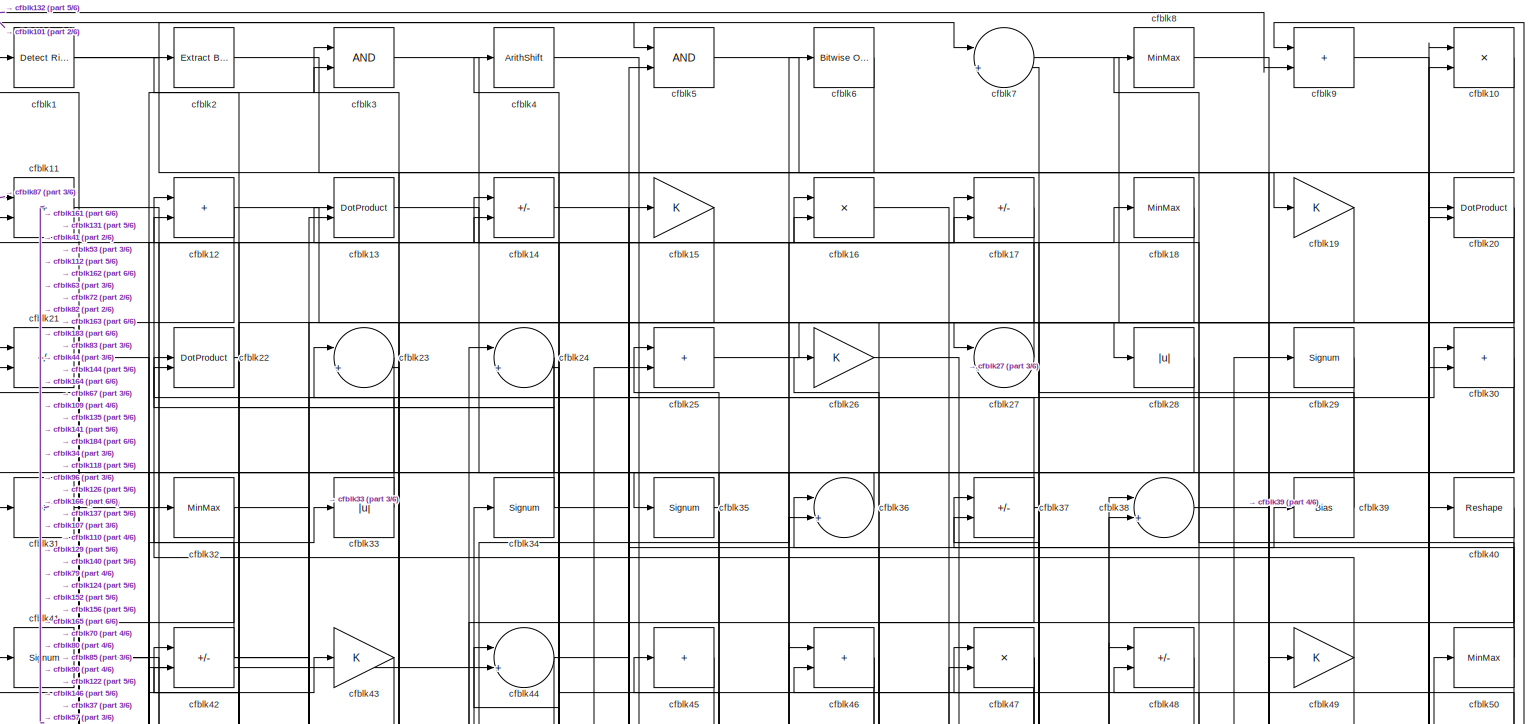
[diagram: root canvas - part 1/6, full width, top band]
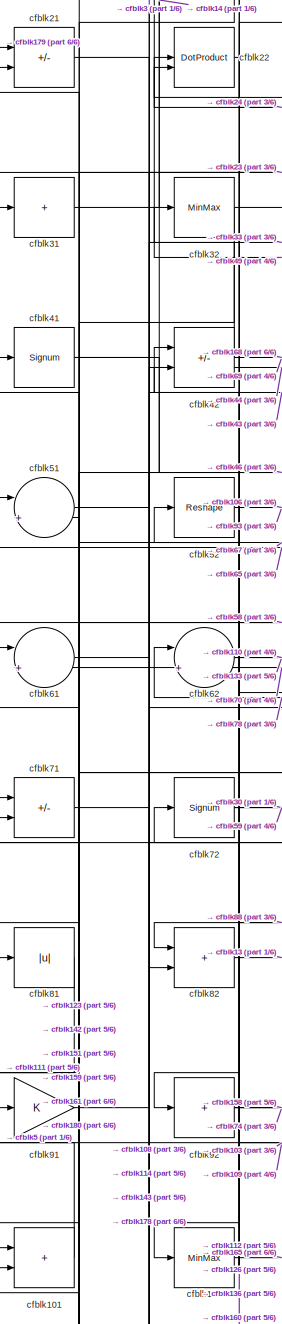
[diagram: root canvas - part 2/6, middle left region]
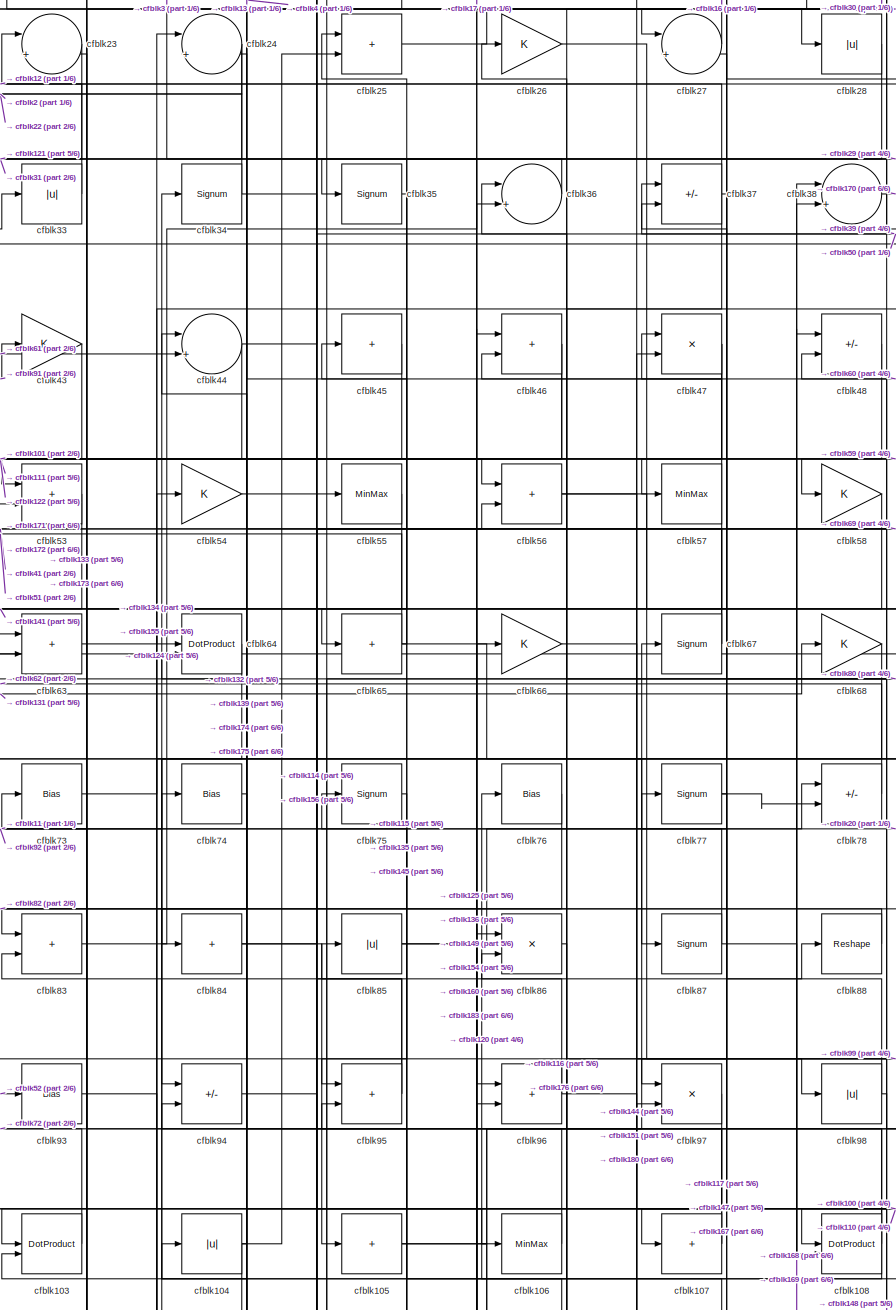
[diagram: root canvas - part 3/6, central region]
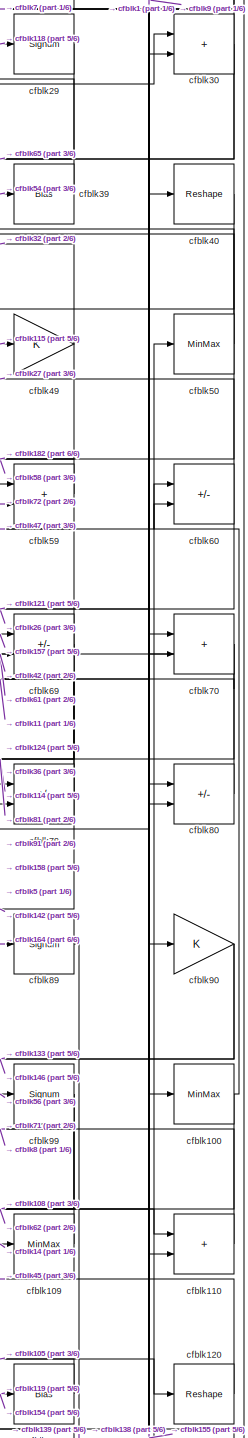
[diagram: root canvas - part 4/6, middle right region]
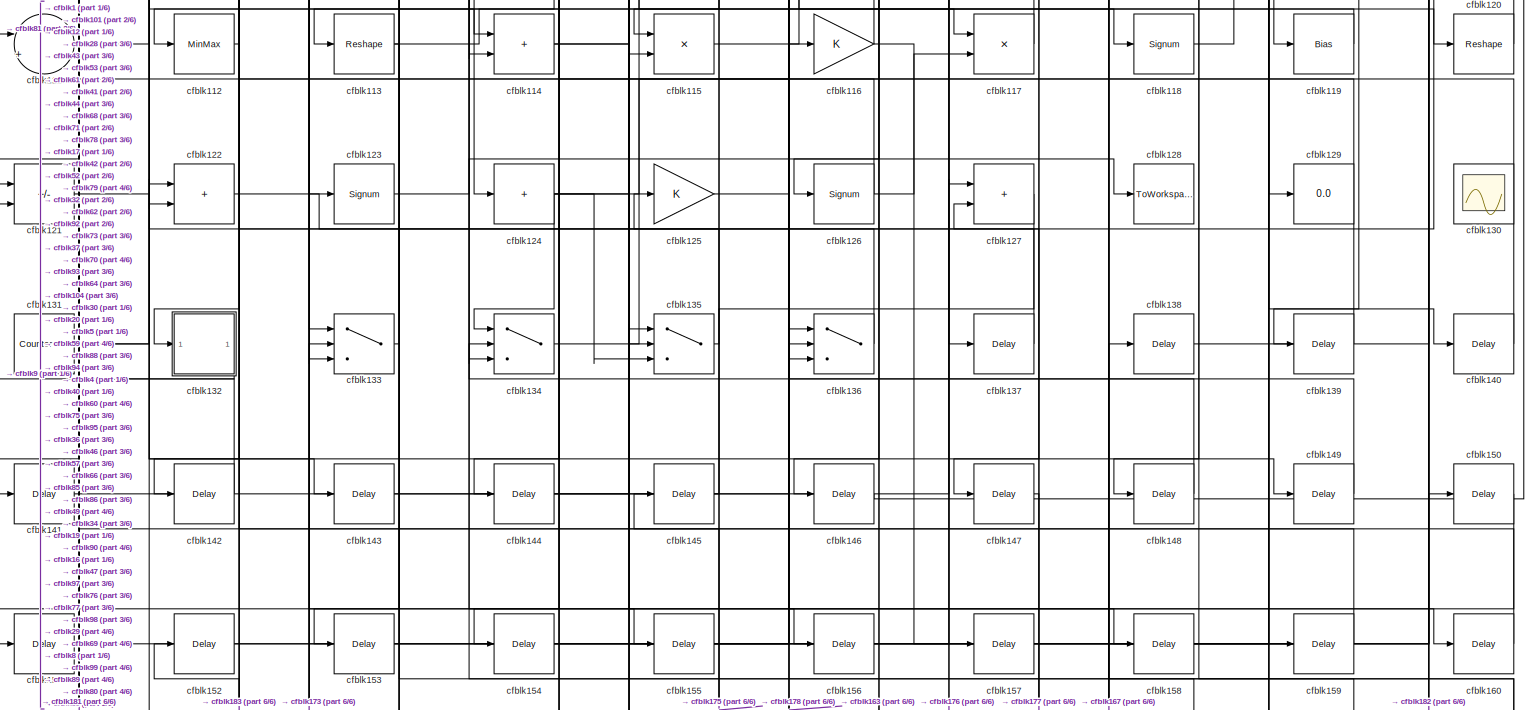
[diagram: root canvas - part 5/6, full width, bottom band]
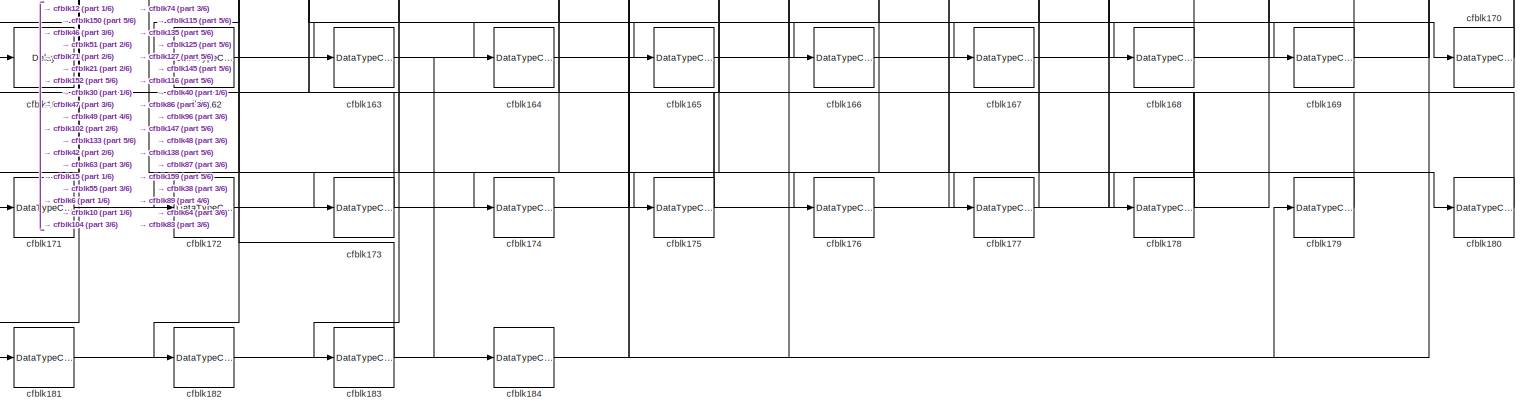
[diagram: root canvas - part 6/6, full width, bottom band]
MODEL slx_c4574be2befc
KIND model
CONFIG AbsTol = auto
CONFIG EnableMultiTasking = off
CONFIG FixedStep = auto
CONFIG MaxStep = auto
CONFIG MinStep = auto
CONFIG RelTol = 1e-3
CONFIG SampleTimeConstraint = Unconstrained
CONFIG SolverName = VariableStepAuto
CONFIG StartTime = 0.0
CONFIG StopTime = 10.0
BLOCK [Reference] cfblk1  REF=hdlsllib/Logic and Bit
Operations/Detect Rise
Nonnegative
  SourceBlock = hdlsllib/Logic and Bit\nOperations/Detect Rise\nNonnegative
  SourceType = Detect Rise Nonnegative
BLOCK [Product] cfblk10
  Inputs = */
  RndMeth = Zero
  SaturateOnIntegerOverflow = on
BLOCK [MinMax] cfblk100
BLOCK [Sum] cfblk101
  IconShape = rectangular
BLOCK [MinMax] cfblk102
BLOCK [DotProduct] cfblk103
  OutDataTypeStr = Inherit: Inherit via internal rule
BLOCK [Abs] cfblk104
  SaturateOnIntegerOverflow = off
BLOCK [Sum] cfblk105
  IconShape = rectangular
  Inputs = +
BLOCK [MinMax] cfblk106
BLOCK [Sum] cfblk107
  IconShape = rectangular
  Inputs = +
BLOCK [DotProduct] cfblk108
  OutDataTypeStr = Inherit: Inherit via internal rule
BLOCK [MinMax] cfblk109
BLOCK [Sum] cfblk11
  IconShape = rectangular
BLOCK [Sum] cfblk110
  IconShape = rectangular
BLOCK [Sum] cfblk111
  Inputs = |++
BLOCK [MinMax] cfblk112
BLOCK [Reshape] cfblk113
BLOCK [Sum] cfblk114
  IconShape = rectangular
BLOCK [Product] cfblk115
  Inputs = */
  RndMeth = Zero
  SaturateOnIntegerOverflow = on
BLOCK [Gain] cfblk116
BLOCK [Product] cfblk117
  Inputs = */
  RndMeth = Zero
  SaturateOnIntegerOverflow = on
BLOCK [Signum] cfblk118
BLOCK [Bias] cfblk119
  Bias = 0.0
  SaturateOnIntegerOverflow = off
BLOCK [Sum] cfblk12
  IconShape = rectangular
BLOCK [Reshape] cfblk120
BLOCK [Sum] cfblk121
  IconShape = rectangular
  Inputs = +-
BLOCK [Sum] cfblk122
  IconShape = rectangular
BLOCK [Signum] cfblk123
BLOCK [Sum] cfblk124
  IconShape = rectangular
  Inputs = +
BLOCK [Gain] cfblk125
BLOCK [Signum] cfblk126
BLOCK [Sum] cfblk127
  IconShape = rectangular
BLOCK [ToWorkspace] cfblk128
  MaxDataPoints = inf
  SampleTime = -1
  SaveFormat = Timeseries
  VariableName = simout
BLOCK [Display] cfblk129
  Decimation = 1
BLOCK [DotProduct] cfblk13
  OutDataTypeStr = Inherit: Inherit via internal rule
BLOCK [Scope] cfblk130
  Floating = on
  NumInputPorts = 1
  ScopeSpecificationString = Simulink.scopes.TimeScopeBlockCfg('CurrentConfiguration', extmgr.ConfigurationSet(extmgr.Configuration('Core','General UI',true,'FigureColor',[0.156862745098039 0.156862745098039 0.156862745098039]),extmgr.Configuration('Core','Source UI',true),extmgr.Configuration('Sources','WiredSimulink',true,'DataLoggingVariableName','ScopeData1','DataLoggingSaveFormat','StructureWithTime','DataLoggingLimitDat...<+2713ch>
BLOCK [Reference] cfblk131  REF=hdlsllib/Sources/Counter
Free-Running
  SourceBlock = hdlsllib/Sources/Counter\nFree-Running
  SourceType = Counter Free-Running
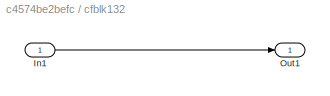
BLOCK [SubSystem] cfblk132
  LibrarySourceBlock = hdlsllib/Ports &\nSubsystems/Subsystem
BLOCK [Inport] cfblk132/In1
BLOCK [Outport] cfblk132/Out1
BLOCK [Switch] cfblk133
  InputSameDT = off
  SaturateOnIntegerOverflow = off
BLOCK [Switch] cfblk134
  InputSameDT = off
  SaturateOnIntegerOverflow = off
BLOCK [Switch] cfblk135
  InputSameDT = off
  SaturateOnIntegerOverflow = off
BLOCK [Switch] cfblk136
  InputSameDT = off
  SaturateOnIntegerOverflow = off
BLOCK [Delay] cfblk137
  InputPortMap = u0
  SampleTime = 1
BLOCK [Delay] cfblk138
  InputPortMap = u0
  SampleTime = 1
BLOCK [Delay] cfblk139
  InputPortMap = u0
  SampleTime = 1
BLOCK [Sum] cfblk14
  IconShape = rectangular
  Inputs = +-
BLOCK [Delay] cfblk140
  InputPortMap = u0
  SampleTime = 1
BLOCK [Delay] cfblk141
  InputPortMap = u0
  SampleTime = 1
BLOCK [Delay] cfblk142
  InputPortMap = u0
  SampleTime = 1
BLOCK [Delay] cfblk143
  InputPortMap = u0
  SampleTime = 1
BLOCK [Delay] cfblk144
  InputPortMap = u0
  SampleTime = 1
BLOCK [Delay] cfblk145
  InputPortMap = u0
  SampleTime = 1
BLOCK [Delay] cfblk146
  InputPortMap = u0
  SampleTime = 1
BLOCK [Delay] cfblk147
  InputPortMap = u0
  SampleTime = 1
BLOCK [Delay] cfblk148
  InputPortMap = u0
  SampleTime = 1
BLOCK [Delay] cfblk149
  InputPortMap = u0
  SampleTime = 1
BLOCK [Gain] cfblk15
BLOCK [Delay] cfblk150
  InputPortMap = u0
  SampleTime = 1
BLOCK [Delay] cfblk151
  InputPortMap = u0
  SampleTime = 1
BLOCK [Delay] cfblk152
  InputPortMap = u0
  SampleTime = 1
BLOCK [Delay] cfblk153
  InputPortMap = u0
  SampleTime = 1
BLOCK [Delay] cfblk154
  InputPortMap = u0
  SampleTime = 1
BLOCK [Delay] cfblk155
  InputPortMap = u0
  SampleTime = 1
BLOCK [Delay] cfblk156
  InputPortMap = u0
  SampleTime = 1
BLOCK [Delay] cfblk157
  InputPortMap = u0
  SampleTime = 1
BLOCK [Delay] cfblk158
  InputPortMap = u0
  SampleTime = 1
BLOCK [Delay] cfblk159
  InputPortMap = u0
  SampleTime = 1
BLOCK [Product] cfblk16
  Inputs = */
  RndMeth = Zero
  SaturateOnIntegerOverflow = on
BLOCK [Delay] cfblk160
  InputPortMap = u0
  SampleTime = 1
BLOCK [Delay] cfblk161
  InputPortMap = u0
  SampleTime = 1
BLOCK [DataTypeConversion] cfblk162
  OutDataTypeStr = boolean
  RndMeth = Floor
  SaturateOnIntegerOverflow = off
BLOCK [DataTypeConversion] cfblk163
  RndMeth = Floor
  SaturateOnIntegerOverflow = off
BLOCK [DataTypeConversion] cfblk164
  OutDataTypeStr = uint8
  RndMeth = Floor
  SaturateOnIntegerOverflow = off
BLOCK [DataTypeConversion] cfblk165
  OutDataTypeStr = uint8
  RndMeth = Floor
  SaturateOnIntegerOverflow = off
BLOCK [DataTypeConversion] cfblk166
  OutDataTypeStr = uint8
  RndMeth = Floor
  SaturateOnIntegerOverflow = off
BLOCK [DataTypeConversion] cfblk167
  OutDataTypeStr = uint8
  RndMeth = Floor
  SaturateOnIntegerOverflow = off
BLOCK [DataTypeConversion] cfblk168
  OutDataTypeStr = uint8
  RndMeth = Floor
  SaturateOnIntegerOverflow = off
BLOCK [DataTypeConversion] cfblk169
  OutDataTypeStr = uint8
  RndMeth = Floor
  SaturateOnIntegerOverflow = off
BLOCK [Sum] cfblk17
  IconShape = rectangular
  Inputs = +-
BLOCK [DataTypeConversion] cfblk170
  RndMeth = Floor
  SaturateOnIntegerOverflow = off
BLOCK [DataTypeConversion] cfblk171
  OutDataTypeStr = uint8
  RndMeth = Floor
  SaturateOnIntegerOverflow = off
BLOCK [DataTypeConversion] cfblk172
  OutDataTypeStr = uint8
  RndMeth = Floor
  SaturateOnIntegerOverflow = off
BLOCK [DataTypeConversion] cfblk173
  RndMeth = Floor
  SaturateOnIntegerOverflow = off
BLOCK [DataTypeConversion] cfblk174
  OutDataTypeStr = uint8
  RndMeth = Floor
  SaturateOnIntegerOverflow = off
BLOCK [DataTypeConversion] cfblk175
  RndMeth = Floor
  SaturateOnIntegerOverflow = off
BLOCK [DataTypeConversion] cfblk176
  OutDataTypeStr = uint8
  RndMeth = Floor
  SaturateOnIntegerOverflow = off
BLOCK [DataTypeConversion] cfblk177
  OutDataTypeStr = uint8
  RndMeth = Floor
  SaturateOnIntegerOverflow = off
BLOCK [DataTypeConversion] cfblk178
  RndMeth = Floor
  SaturateOnIntegerOverflow = off
BLOCK [DataTypeConversion] cfblk179
  OutDataTypeStr = uint8
  RndMeth = Floor
  SaturateOnIntegerOverflow = off
BLOCK [MinMax] cfblk18
BLOCK [DataTypeConversion] cfblk180
  OutDataTypeStr = uint8
  RndMeth = Floor
  SaturateOnIntegerOverflow = off
BLOCK [DataTypeConversion] cfblk181
  OutDataTypeStr = uint8
  RndMeth = Floor
  SaturateOnIntegerOverflow = off
BLOCK [DataTypeConversion] cfblk182
  OutDataTypeStr = uint8
  RndMeth = Floor
  SaturateOnIntegerOverflow = off
BLOCK [DataTypeConversion] cfblk183
  RndMeth = Floor
  SaturateOnIntegerOverflow = off
BLOCK [DataTypeConversion] cfblk184
  OutDataTypeStr = uint8
  RndMeth = Floor
  SaturateOnIntegerOverflow = off
BLOCK [Gain] cfblk19
BLOCK [Reference] cfblk2  REF=simulink/Logic and Bit
Operations/Extract Bits
  LibrarySourceBlock = hdlsllib/Logic and Bit\nOperations/Extract Bits
  SourceBlock = simulink/Logic and Bit\nOperations/Extract Bits
  SourceType = Extract Bits
BLOCK [DotProduct] cfblk20
  OutDataTypeStr = Inherit: Inherit via internal rule
BLOCK [Sum] cfblk21
  IconShape = rectangular
  Inputs = +-
BLOCK [DotProduct] cfblk22
  OutDataTypeStr = Inherit: Inherit via internal rule
BLOCK [Sum] cfblk23
  Inputs = |++
BLOCK [Sum] cfblk24
  Inputs = |++
BLOCK [Sum] cfblk25
  IconShape = rectangular
BLOCK [Gain] cfblk26
BLOCK [Sum] cfblk27
  Inputs = |++
BLOCK [Abs] cfblk28
  SaturateOnIntegerOverflow = off
BLOCK [Signum] cfblk29
BLOCK [Logic] cfblk3
  AllPortsSameDT = off
  OutDataTypeStr = boolean
BLOCK [Sum] cfblk30
  IconShape = rectangular
BLOCK [Sum] cfblk31
  IconShape = rectangular
  Inputs = +
BLOCK [MinMax] cfblk32
BLOCK [Abs] cfblk33
  SaturateOnIntegerOverflow = off
BLOCK [Signum] cfblk34
BLOCK [Signum] cfblk35
BLOCK [Sum] cfblk36
  Inputs = |++
BLOCK [Sum] cfblk37
  IconShape = rectangular
  Inputs = +-
BLOCK [Sum] cfblk38
  Inputs = |++
BLOCK [Bias] cfblk39
  Bias = 0.0
  SaturateOnIntegerOverflow = off
BLOCK [ArithShift] cfblk4
  BitShiftNumber = 8
  InputPortMap = u0
BLOCK [Reshape] cfblk40
BLOCK [Signum] cfblk41
BLOCK [Sum] cfblk42
  IconShape = rectangular
  Inputs = +-
BLOCK [Gain] cfblk43
BLOCK [Sum] cfblk44
  Inputs = |++
BLOCK [Sum] cfblk45
  IconShape = rectangular
  Inputs = +
BLOCK [Sum] cfblk46
  IconShape = rectangular
BLOCK [Product] cfblk47
  Inputs = */
  RndMeth = Zero
  SaturateOnIntegerOverflow = on
BLOCK [Sum] cfblk48
  IconShape = rectangular
  Inputs = +-
BLOCK [Gain] cfblk49
BLOCK [Logic] cfblk5
  AllPortsSameDT = off
  OutDataTypeStr = boolean
BLOCK [MinMax] cfblk50
BLOCK [Sum] cfblk51
  Inputs = |++
BLOCK [Reshape] cfblk52
BLOCK [Sum] cfblk53
  IconShape = rectangular
BLOCK [Gain] cfblk54
BLOCK [MinMax] cfblk55
BLOCK [Sum] cfblk56
  IconShape = rectangular
BLOCK [MinMax] cfblk57
BLOCK [Gain] cfblk58
BLOCK [Sum] cfblk59
  IconShape = rectangular
BLOCK [Reference] cfblk6  REF=simulink/Logic and Bit
Operations/Bitwise
Operator
  LibrarySourceBlock = hdlsllib/Logic and Bit\nOperations/Bitwise\nOperator
  SourceBlock = simulink/Logic and Bit\nOperations/Bitwise\nOperator
  SourceType = Bitwise Operator
BLOCK [Sum] cfblk60
  IconShape = rectangular
  Inputs = +-
BLOCK [Sum] cfblk61
  Inputs = |++
BLOCK [Sum] cfblk62
  Inputs = |++
BLOCK [Sum] cfblk63
  IconShape = rectangular
BLOCK [DotProduct] cfblk64
  OutDataTypeStr = Inherit: Inherit via internal rule
BLOCK [Sum] cfblk65
  IconShape = rectangular
  Inputs = +
BLOCK [Gain] cfblk66
BLOCK [Signum] cfblk67
BLOCK [Gain] cfblk68
BLOCK [Sum] cfblk69
  IconShape = rectangular
  Inputs = +-
BLOCK [Sum] cfblk7
  Inputs = |++
BLOCK [Sum] cfblk70
  IconShape = rectangular
BLOCK [Sum] cfblk71
  IconShape = rectangular
  Inputs = +-
BLOCK [Signum] cfblk72
BLOCK [Bias] cfblk73
  Bias = 0.0
  SaturateOnIntegerOverflow = off
BLOCK [Bias] cfblk74
  Bias = 0.0
  SaturateOnIntegerOverflow = off
BLOCK [Signum] cfblk75
BLOCK [Bias] cfblk76
  Bias = 0.0
  SaturateOnIntegerOverflow = off
BLOCK [Signum] cfblk77
BLOCK [Sum] cfblk78
  IconShape = rectangular
  Inputs = +-
BLOCK [Sum] cfblk79
  IconShape = rectangular
  Inputs = +-
BLOCK [MinMax] cfblk8
BLOCK [Sum] cfblk80
  IconShape = rectangular
  Inputs = +-
BLOCK [Abs] cfblk81
  SaturateOnIntegerOverflow = off
BLOCK [Sum] cfblk82
  IconShape = rectangular
BLOCK [Sum] cfblk83
  IconShape = rectangular
BLOCK [Sum] cfblk84
  IconShape = rectangular
  Inputs = +
BLOCK [Abs] cfblk85
  SaturateOnIntegerOverflow = off
BLOCK [Product] cfblk86
  Inputs = */
  RndMeth = Zero
  SaturateOnIntegerOverflow = on
BLOCK [Signum] cfblk87
BLOCK [Reshape] cfblk88
BLOCK [Signum] cfblk89
BLOCK [Sum] cfblk9
  IconShape = rectangular
BLOCK [Gain] cfblk90
BLOCK [Gain] cfblk91
BLOCK [Sum] cfblk92
  IconShape = rectangular
  Inputs = +
BLOCK [Bias] cfblk93
  Bias = 0.0
  SaturateOnIntegerOverflow = off
BLOCK [Sum] cfblk94
  IconShape = rectangular
  Inputs = +-
BLOCK [Sum] cfblk95
  IconShape = rectangular
BLOCK [Sum] cfblk96
  IconShape = rectangular
BLOCK [Product] cfblk97
  Inputs = */
  RndMeth = Zero
  SaturateOnIntegerOverflow = on
BLOCK [Abs] cfblk98
  SaturateOnIntegerOverflow = off
BLOCK [Signum] cfblk99
NET cfblk100:1 -> cfblk108:1, cfblk60:1
LINE cfblk101:1 -> cfblk5:1
LINE cfblk102:1 -> cfblk165:1
LINE cfblk103:1 -> cfblk72:1
NET cfblk104:1 -> cfblk132:1, cfblk25:2, cfblk64:2
NET cfblk105:1 -> cfblk120:1, cfblk67:1
LINE cfblk106:1 -> cfblk94:2
NET cfblk107:1 -> cfblk23:1, cfblk26:1
NET cfblk108:1 -> cfblk103:2, cfblk24:2, cfblk37:1
LINE cfblk109:1 -> cfblk71:1
LINE cfblk10:1 -> cfblk164:1
LINE cfblk110:1 -> cfblk8:1
LINE cfblk111:1 -> cfblk78:1
LINE cfblk112:1 -> cfblk62:2
NET cfblk113:1 -> cfblk117:1, cfblk153:1
NET cfblk114:1 -> cfblk59:1, cfblk88:1
LINE cfblk115:1 -> cfblk49:1
NET cfblk116:1 -> cfblk157:1, cfblk34:1
LINE cfblk117:1 -> cfblk76:1
LINE cfblk118:1 -> cfblk29:1
LINE cfblk119:1 -> cfblk113:1
LINE cfblk11:1 -> cfblk53:2
LINE cfblk120:1 -> cfblk45:1
LINE cfblk121:1 -> cfblk149:1
LINE cfblk122:1 -> cfblk50:1
LINE cfblk123:1 -> cfblk128:1
NET cfblk124:1 -> cfblk134:1, cfblk135:3, cfblk40:1, cfblk60:2
LINE cfblk125:1 -> cfblk86:1
NET cfblk126:1 -> cfblk117:2, cfblk52:1
LINE cfblk127:1 -> cfblk175:1
NET cfblk12:1 -> cfblk129:1, cfblk161:1
NET cfblk131:1 -> cfblk17:2, cfblk68:1
LINE cfblk132/In1:1 -> cfblk132/Out1:1
LINE cfblk132:1 -> cfblk9:2
LINE cfblk133:1 -> cfblk73:1
LINE cfblk134:1 -> cfblk66:1
LINE cfblk135:1 -> cfblk75:1
LINE cfblk136:1 -> cfblk42:1
LINE cfblk137:1 -> cfblk122:1
LINE cfblk138:1 -> cfblk70:1
LINE cfblk139:1 -> cfblk44:1
LINE cfblk13:1 -> cfblk16:2
LINE cfblk140:1 -> cfblk1:1
LINE cfblk141:1 -> cfblk5:2
LINE cfblk142:1 -> cfblk101:2
LINE cfblk143:1 -> cfblk136:1
LINE cfblk144:1 -> cfblk97:2
LINE cfblk145:1 -> cfblk95:2
LINE cfblk146:1 -> cfblk9:1
LINE cfblk147:1 -> cfblk177:1
LINE cfblk148:1 -> cfblk134:2
LINE cfblk149:1 -> cfblk46:1
LINE cfblk14:1 -> cfblk109:1
LINE cfblk150:1 -> cfblk181:1
LINE cfblk151:1 -> cfblk47:2
LINE cfblk152:1 -> cfblk30:2
LINE cfblk153:1 -> cfblk136:2
LINE cfblk154:1 -> cfblk36:2
LINE cfblk155:1 -> cfblk80:2
LINE cfblk156:1 -> cfblk20:2
LINE cfblk157:1 -> cfblk69:1
LINE cfblk158:1 -> cfblk79:1
LINE cfblk159:1 -> cfblk61:1
LINE cfblk15:1 -> cfblk183:1
LINE cfblk160:1 -> cfblk42:2
LINE cfblk161:1 -> cfblk51:2
LINE cfblk162:1 -> cfblk6:1
NET cfblk163:1 -> cfblk116:1, cfblk184:1
LINE cfblk164:1 -> cfblk89:1
LINE cfblk165:1 -> cfblk10:1
LINE cfblk166:1 -> cfblk10:2
LINE cfblk167:1 -> cfblk138:1
LINE cfblk168:1 -> cfblk48:1
LINE cfblk169:1 -> cfblk48:2
LINE cfblk16:1 -> cfblk137:1
NET cfblk170:1 -> cfblk64:1, cfblk83:2
LINE cfblk171:1 -> cfblk38:1
LINE cfblk172:1 -> cfblk38:2
NET cfblk173:1 -> cfblk133:2, cfblk135:1, cfblk159:1
LINE cfblk174:1 -> cfblk55:1
NET cfblk175:1 -> cfblk104:1, cfblk63:1
LINE cfblk176:1 -> cfblk127:1
LINE cfblk177:1 -> cfblk127:2
NET cfblk178:1 -> cfblk125:1, cfblk145:1, cfblk71:2
LINE cfblk179:1 -> cfblk21:1
LINE cfblk17:1 -> cfblk112:1
LINE cfblk180:1 -> cfblk21:2
LINE cfblk181:1 -> cfblk115:2
LINE cfblk182:1 -> cfblk150:1
NET cfblk183:1 -> cfblk152:1, cfblk179:1, cfblk96:2
LINE cfblk184:1 -> cfblk15:1
LINE cfblk18:1 -> cfblk63:2
LINE cfblk19:1 -> cfblk126:1
NET cfblk1:1 -> cfblk70:2, cfblk7:1
NET cfblk20:1 -> cfblk107:1, cfblk135:2
LINE cfblk21:1 -> cfblk178:1
LINE cfblk22:1 -> cfblk102:1
LINE cfblk23:1 -> cfblk31:1
NET cfblk24:1 -> cfblk22:2, cfblk82:2
LINE cfblk25:1 -> cfblk28:1
LINE cfblk26:1 -> cfblk100:1
LINE cfblk27:1 -> cfblk16:1
LINE cfblk28:1 -> cfblk121:1
LINE cfblk29:1 -> cfblk65:1
LINE cfblk2:1 -> cfblk19:1
NET cfblk30:1 -> cfblk144:1, cfblk162:1, cfblk27:1
LINE cfblk31:1 -> cfblk14:1
NET cfblk32:1 -> cfblk123:1, cfblk151:1
LINE cfblk33:1 -> cfblk12:1
NET cfblk34:1 -> cfblk2:1, cfblk56:1
LINE cfblk35:1 -> cfblk95:1
LINE cfblk36:1 -> cfblk35:1
NET cfblk37:1 -> cfblk134:3, cfblk3:2, cfblk97:1
LINE cfblk38:1 -> cfblk170:1
LINE cfblk39:1 -> cfblk14:2
LINE cfblk3:1 -> cfblk96:1
LINE cfblk40:1 -> cfblk166:1
NET cfblk41:1 -> cfblk108:2, cfblk114:1, cfblk3:1
NET cfblk42:1 -> cfblk168:1, cfblk22:1, cfblk69:2
LINE cfblk43:1 -> cfblk111:2
NET cfblk44:1 -> cfblk122:2, cfblk18:1
LINE cfblk45:1 -> cfblk53:1
NET cfblk46:1 -> cfblk101:1, cfblk171:1
NET cfblk47:1 -> cfblk172:1, cfblk46:2, cfblk84:1
LINE cfblk48:1 -> cfblk167:1
NET cfblk49:1 -> cfblk182:1, cfblk32:1
LINE cfblk4:1 -> cfblk118:1
NET cfblk50:1 -> cfblk12:2, cfblk37:2, cfblk57:1
LINE cfblk51:1 -> cfblk33:1
NET cfblk52:1 -> cfblk106:1, cfblk93:1
LINE cfblk53:1 -> cfblk141:1
LINE cfblk54:1 -> cfblk39:1
LINE cfblk55:1 -> cfblk173:1
NET cfblk56:1 -> cfblk110:2, cfblk99:1
NET cfblk57:1 -> cfblk136:3, cfblk13:1
LINE cfblk58:1 -> cfblk92:1
LINE cfblk59:1 -> cfblk58:1
LINE cfblk5:1 -> cfblk79:2
NET cfblk60:1 -> cfblk121:2, cfblk27:2
LINE cfblk61:1 -> cfblk44:2
NET cfblk62:1 -> cfblk110:1, cfblk133:1
LINE cfblk63:1 -> cfblk54:1
LINE cfblk64:1 -> cfblk124:1
NET cfblk65:1 -> cfblk25:1, cfblk51:1, cfblk87:1
LINE cfblk66:1 -> cfblk98:1
NET cfblk67:1 -> cfblk41:1, cfblk4:1
LINE cfblk68:1 -> cfblk94:1
NET cfblk69:1 -> cfblk47:1, cfblk81:1, cfblk91:1
LINE cfblk6:1 -> cfblk163:1
NET cfblk70:1 -> cfblk114:2, cfblk61:2
LINE cfblk71:1 -> cfblk143:1
NET cfblk72:1 -> cfblk30:1, cfblk59:2
LINE cfblk73:1 -> cfblk24:1
LINE cfblk74:1 -> cfblk174:1
LINE cfblk75:1 -> cfblk115:1
LINE cfblk76:1 -> cfblk83:1
NET cfblk77:1 -> cfblk147:1, cfblk78:2
LINE cfblk78:1 -> cfblk62:1
NET cfblk79:1 -> cfblk11:2, cfblk142:1, cfblk7:2
LINE cfblk7:1 -> cfblk80:1
LINE cfblk80:1 -> cfblk36:1
LINE cfblk81:1 -> cfblk111:1
LINE cfblk82:1 -> cfblk13:2
LINE cfblk83:1 -> cfblk17:1
NET cfblk84:1 -> cfblk105:1, cfblk56:2
NET cfblk85:1 -> cfblk160:1, cfblk20:1
LINE cfblk86:1 -> cfblk176:1
NET cfblk87:1 -> cfblk11:1, cfblk169:1
LINE cfblk88:1 -> cfblk82:1
LINE cfblk89:1 -> cfblk139:1
LINE cfblk8:1 -> cfblk140:1
NET cfblk90:1 -> cfblk133:3, cfblk146:1
LINE cfblk91:1 -> cfblk43:1
NET cfblk92:1 -> cfblk158:1, cfblk74:1
LINE cfblk93:1 -> cfblk155:1
LINE cfblk94:1 -> cfblk156:1
NET cfblk95:1 -> cfblk23:2, cfblk85:1
NET cfblk96:1 -> cfblk180:1, cfblk86:2
LINE cfblk97:1 -> cfblk103:1
NET cfblk98:1 -> cfblk148:1, cfblk77:1
NET cfblk99:1 -> cfblk119:1, cfblk154:1
LINE cfblk9:1 -> cfblk90:1
note: NET lines group one-source signal fan-out (src -> all destinations, sorted); 1:1 wires keep LINE
